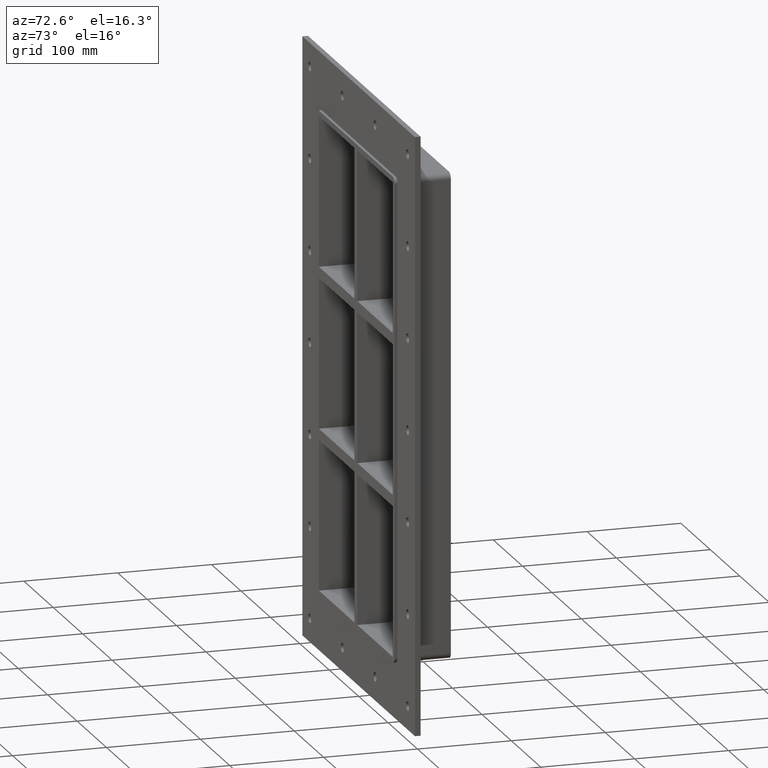
[diagram: clean part render]
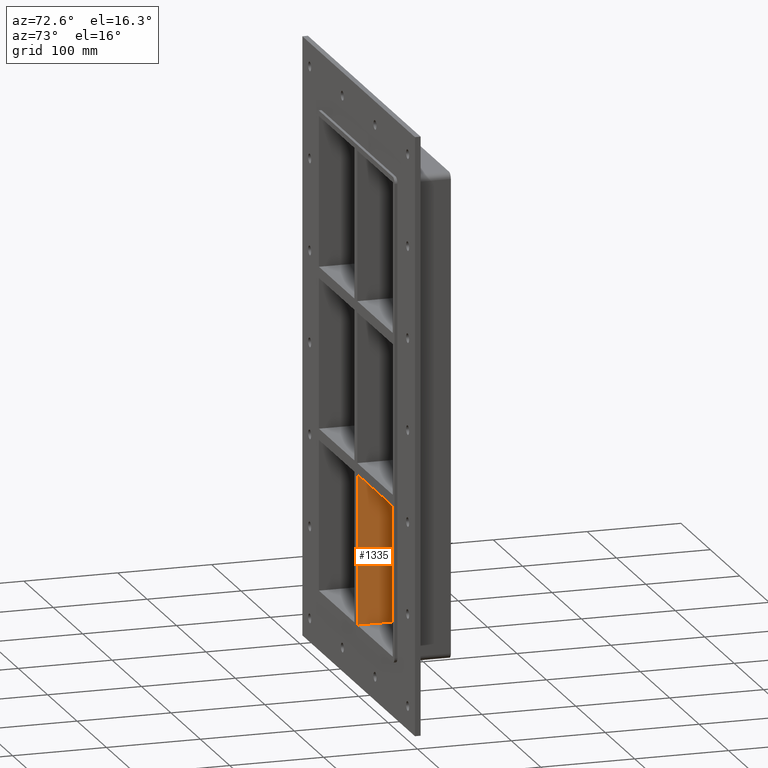
[diagram: same view with one face highlighted and labeled with its STEP entity id]
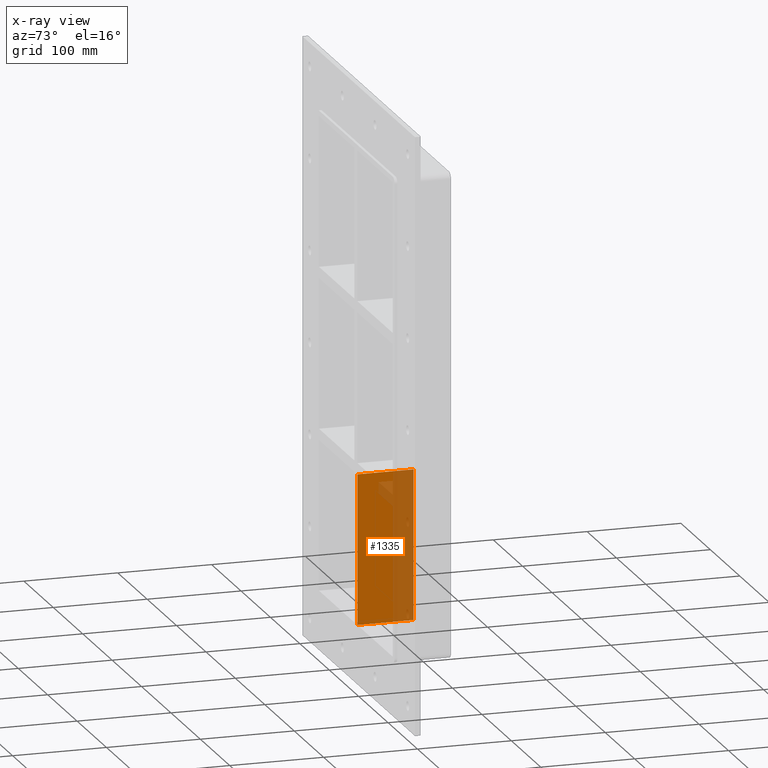
[diagram: x-ray of the same camera — body ghosted, the highlighted face saturated]
A machine part, auxiliary view. The second image highlights one B-rep face of the part: STEP entity #1335.
The next image is the same camera in x-ray: the body ghosted, the highlighted face saturated — about 40% of this face is hidden behind the body in this view.
In plain terms, the highlighted planar face has unit normal (1, 0, 0).
Its self-contained STEP definition (entity closure, byte-faithful):
#923=CARTESIAN_POINT('',(5.0,57.0,-91.750000000009379));
#924=VERTEX_POINT('',#923);
#925=CARTESIAN_POINT('',(5.0,-3.0,-91.750000000009379));
#926=VERTEX_POINT('',#925);
#927=CARTESIAN_POINT('',(5.0,57.0,-91.750000000009408));
#928=DIRECTION('',(0.0,-1.0,0.0));
#929=VECTOR('',#928,60.0);
#930=LINE('',#927,#929);
#931=EDGE_CURVE('',#924,#926,#930,.T.);
#1253=CARTESIAN_POINT('',(5.0,57.0,-251.24999999998425));
#1254=VERTEX_POINT('',#1253);
#1255=CARTESIAN_POINT('',(5.0,57.0,-91.750000000009408));
#1256=DIRECTION('',(0.0,0.0,-1.0));
#1257=VECTOR('',#1256,159.49999999997488);
#1258=LINE('',#1255,#1257);
#1259=EDGE_CURVE('',#924,#1254,#1258,.T.);
#1312=CARTESIAN_POINT('',(5.0,-3.0,251.25000000000003));
#1313=DIRECTION('',(1.0,0.0,0.0));
#1314=DIRECTION('',(0.0,0.0,-1.0));
#1315=AXIS2_PLACEMENT_3D('',#1312,#1313,#1314);
#1316=PLANE('',#1315);
#1317=ORIENTED_EDGE('',*,*,#931,.T.);
#1318=CARTESIAN_POINT('',(5.0,-3.0,-251.24999999998425));
#1319=VERTEX_POINT('',#1318);
#1320=CARTESIAN_POINT('',(5.0,-3.0,-91.750000000009408));
#1321=DIRECTION('',(0.0,0.0,-1.0));
#1322=VECTOR('',#1321,159.49999999997488);
#1323=LINE('',#1320,#1322);
#1324=EDGE_CURVE('',#926,#1319,#1323,.T.);
#1325=ORIENTED_EDGE('',*,*,#1324,.T.);
#1326=CARTESIAN_POINT('',(5.0,57.000000000000007,-251.25000000000003));
#1327=DIRECTION('',(0.0,-1.0,0.0));
#1328=VECTOR('',#1327,60.000000000000007);
#1329=LINE('',#1326,#1328);
#1330=EDGE_CURVE('',#1254,#1319,#1329,.T.);
#1331=ORIENTED_EDGE('',*,*,#1330,.F.);
#1332=ORIENTED_EDGE('',*,*,#1259,.F.);
#1333=EDGE_LOOP('',(#1317,#1325,#1331,#1332));
#1334=FACE_OUTER_BOUND('',#1333,.T.);
#1335=ADVANCED_FACE('',(#1334),#1316,.T.);